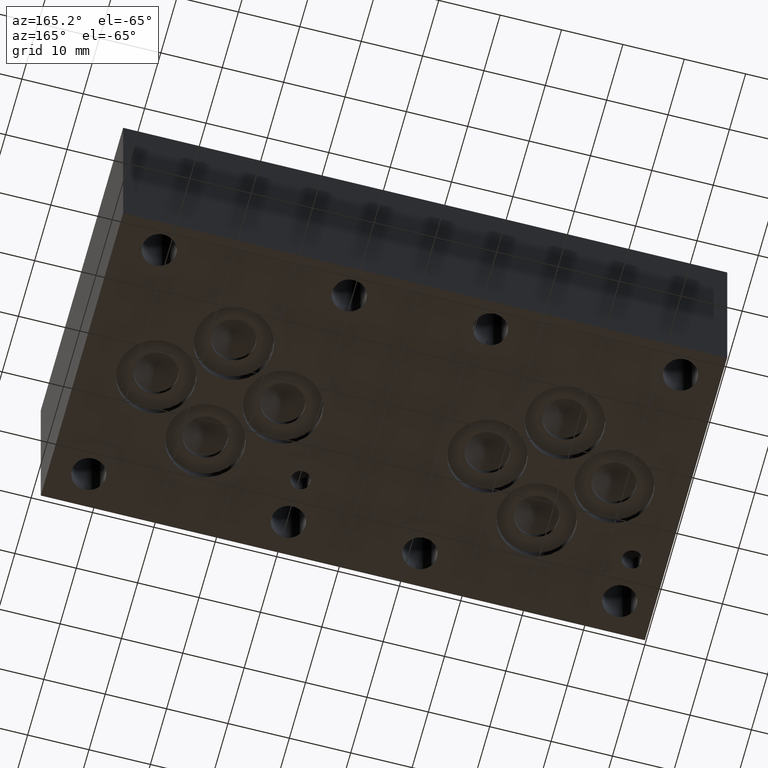
[diagram: clean part render]
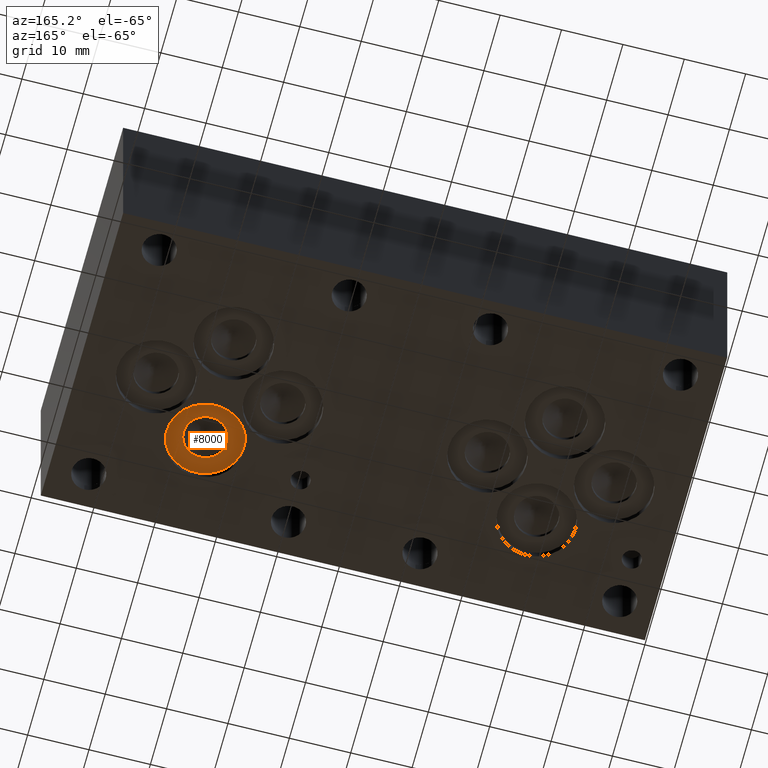
[diagram: same view with one face highlighted and labeled with its STEP entity id]
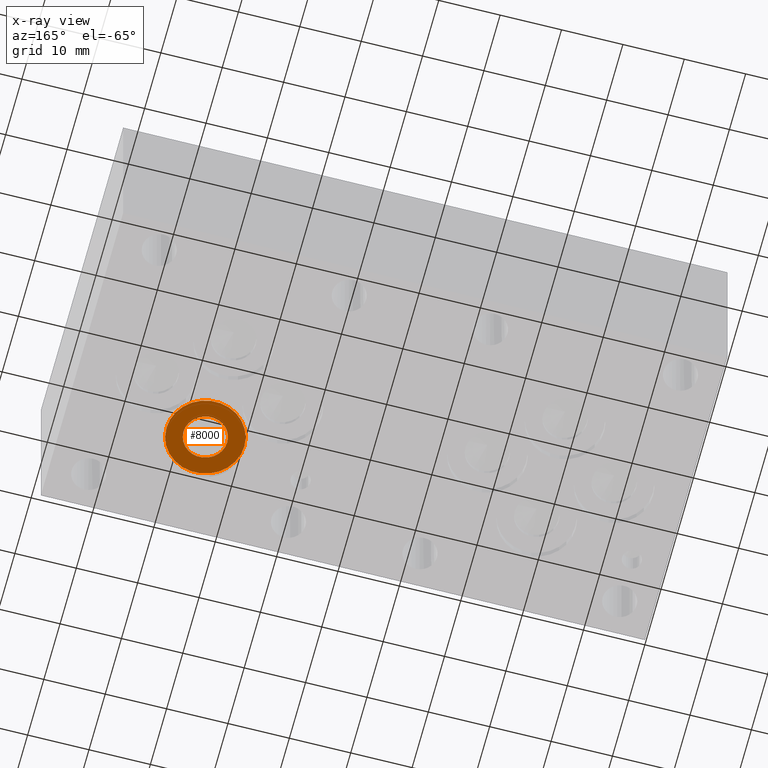
[diagram: x-ray of the same camera — body ghosted, the highlighted face saturated]
A machine part, auxiliary view. The second image highlights one B-rep face of the part: STEP entity #8000.
The next image is the same camera in x-ray: the body ghosted, the highlighted face saturated — about 0% of this face is hidden behind the body in this view.
In plain terms, the highlighted planar face has unit normal (0, 0, -1).
Its self-contained STEP definition (entity closure, byte-faithful):
#70=CIRCLE('',#8331,3.5687);
#86=CIRCLE('',#8362,6.35);
#199=FACE_BOUND('',#1378,.T.);
#923=FACE_OUTER_BOUND('',#1377,.T.);
#1377=EDGE_LOOP('',(#6819));
#1378=EDGE_LOOP('',(#6820));
#3690=VERTEX_POINT('',#13338);
#3706=VERTEX_POINT('',#13393);
#4738=EDGE_CURVE('',#3690,#3690,#70,.T.);
#4763=EDGE_CURVE('',#3706,#3706,#86,.T.);
#6819=ORIENTED_EDGE('',*,*,#4763,.T.);
#6820=ORIENTED_EDGE('',*,*,#4738,.T.);
#7297=PLANE('',#8363);
#8000=ADVANCED_FACE('',(#923,#199),#7297,.T.);
#8331=AXIS2_PLACEMENT_3D('',#13339,#9728,#9729);
#8362=AXIS2_PLACEMENT_3D('',#13395,#9799,#9800);
#8363=AXIS2_PLACEMENT_3D('',#13396,#9801,#9802);
#9728=DIRECTION('center_axis',(0.,0.,1.));
#9729=DIRECTION('ref_axis',(1.,0.,0.));
#9799=DIRECTION('center_axis',(0.,0.,-1.));
#9800=DIRECTION('ref_axis',(1.,0.,0.));
#9801=DIRECTION('center_axis',(0.,0.,-1.));
#9802=DIRECTION('ref_axis',(1.,0.,0.));
#13338=CARTESIAN_POINT('',(72.2249,15.8496,1.3208));
#13339=CARTESIAN_POINT('Origin',(75.7936,15.8496,1.3208));
#13393=CARTESIAN_POINT('',(69.4436,15.8496,1.3208));
#13395=CARTESIAN_POINT('Origin',(75.7936,15.8496,1.3208));
#13396=CARTESIAN_POINT('Origin',(75.7936,15.8496,1.3208));